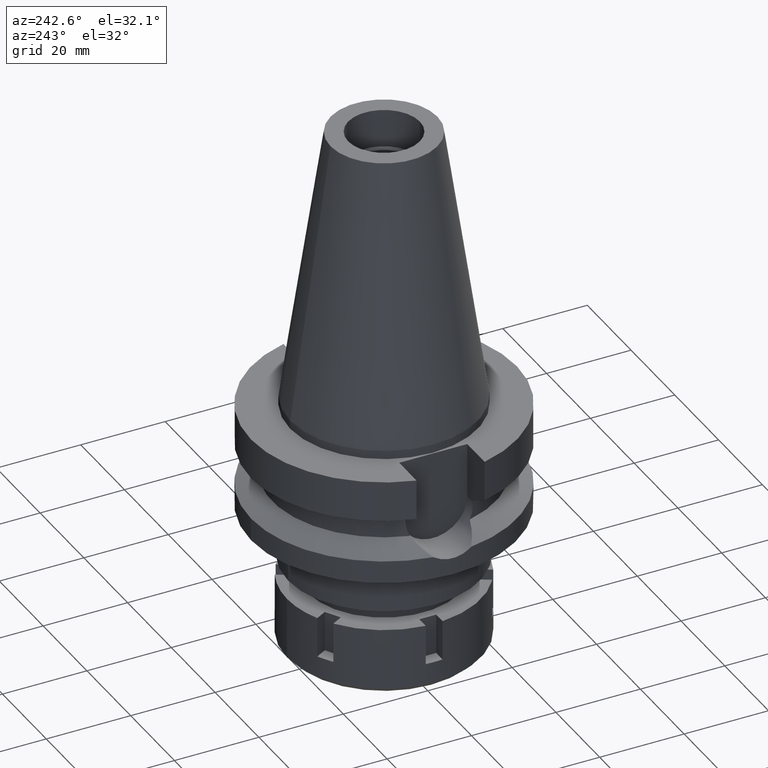
[diagram: clean part render]
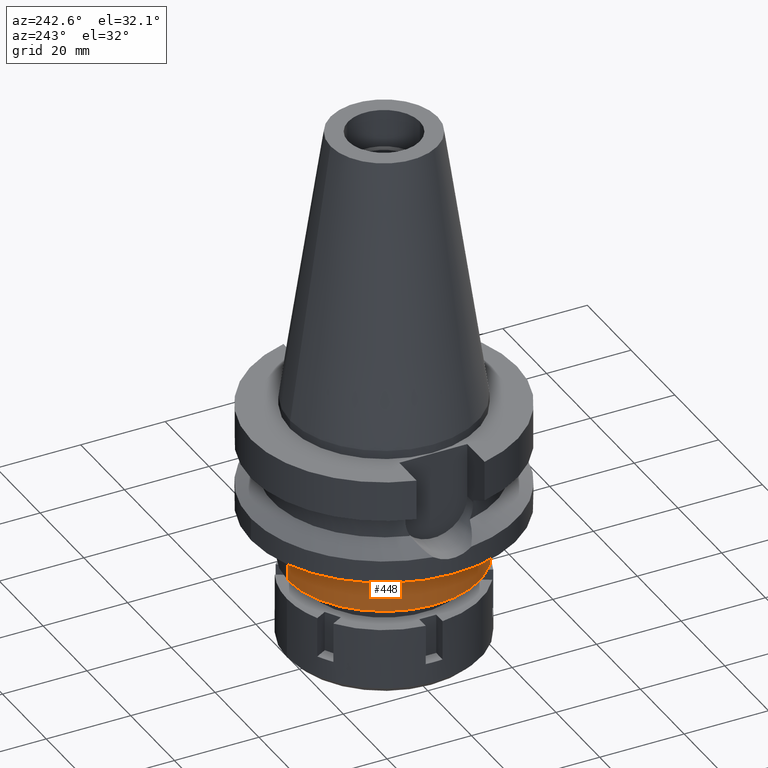
[diagram: same view with one face highlighted and labeled with its STEP entity id]
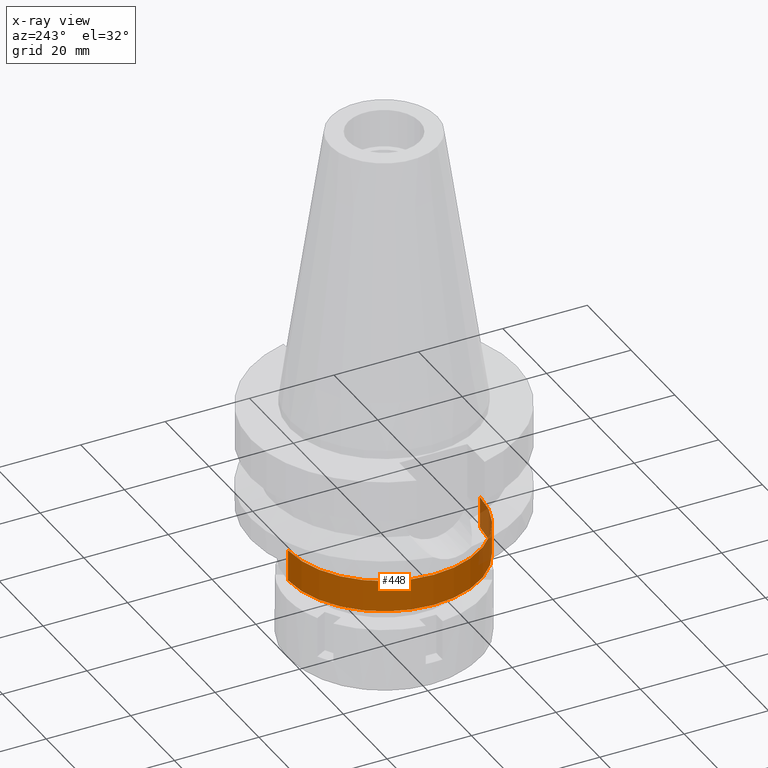
[diagram: x-ray of the same camera — body ghosted, the highlighted face saturated]
A machine part, auxiliary view. The second image highlights one B-rep face of the part: STEP entity #448.
The next image is the same camera in x-ray: the body ghosted, the highlighted face saturated — about 9% of this face is hidden behind the body in this view.
In plain terms, the highlighted cylindrical surface (partial cylindrical patch) has radius 22.75 mm, axis along (0, 0, -1).
Its self-contained STEP definition (entity closure, byte-faithful):
#24 = CARTESIAN_POINT ( 'NONE',  ( 0.0000000000000000000, -22.75000000000000000, -32.00000000000000000 ) ) ;
#207 = VERTEX_POINT ( 'NONE', #3461 ) ;
#298 = VERTEX_POINT ( 'NONE', #1915 ) ;
#357 = AXIS2_PLACEMENT_3D ( 'NONE', #1177, #3073, #2285 ) ;
#448 = ADVANCED_FACE ( 'NONE', ( #1636 ), #3273, .T. ) ;
#526 = CIRCLE ( 'NONE', #1285, 22.75000000000000000 ) ;
#546 = DIRECTION ( 'NONE',  ( 0.0000000000000000000, 0.0000000000000000000, -1.000000000000000000 ) ) ;
#874 = EDGE_CURVE ( 'NONE', #1714, #298, #2194, .T. ) ;
#894 = EDGE_CURVE ( 'NONE', #207, #298, #526, .T. ) ;
#1072 = EDGE_CURVE ( 'NONE', #1714, #2731, #1956, .T. ) ;
#1155 = CARTESIAN_POINT ( 'NONE',  ( 0.0000000000000000000, 2.097452572899999775E-14, -39.50000000000000000 ) ) ;
#1177 = CARTESIAN_POINT ( 'NONE',  ( 0.0000000000000000000, 0.0000000000000000000, -32.00000000000000000 ) ) ;
#1211 = ORIENTED_EDGE ( 'NONE', *, *, #894, .T. ) ;
#1257 = CARTESIAN_POINT ( 'NONE',  ( 0.0000000000000000000, -22.75000000000000000, -32.00000000000000000 ) ) ;
#1285 = AXIS2_PLACEMENT_3D ( 'NONE', #1155, #2482, #2973 ) ;
#1636 = FACE_OUTER_BOUND ( 'NONE', #2552, .T. ) ;
#1706 = DIRECTION ( 'NONE',  ( 0.0000000000000000000, -1.000000000000000000, 0.0000000000000000000 ) ) ;
#1714 = VERTEX_POINT ( 'NONE', #1257 ) ;
#1736 = CARTESIAN_POINT ( 'NONE',  ( 0.0000000000000000000, 22.75000000000000000, -32.00000000000000000 ) ) ;
#1843 = AXIS2_PLACEMENT_3D ( 'NONE', #2486, #546, #1706 ) ;
#1915 = CARTESIAN_POINT ( 'NONE',  ( 0.0000000000000000000, -22.75000000000000000, -39.50000000000000000 ) ) ;
#1956 = CIRCLE ( 'NONE', #357, 22.75000000000000000 ) ;
#2064 = LINE ( 'NONE', #2628, #2130 ) ;
#2130 = VECTOR ( 'NONE', #3442, 1000.000000000000000 ) ;
#2194 = LINE ( 'NONE', #24, #3438 ) ;
#2285 = DIRECTION ( 'NONE',  ( 0.0000000000000000000, -1.000000000000000000, 0.0000000000000000000 ) ) ;
#2482 = DIRECTION ( 'NONE',  ( 0.0000000000000000000, 0.0000000000000000000, 1.000000000000000000 ) ) ;
#2486 = CARTESIAN_POINT ( 'NONE',  ( 0.0000000000000000000, 2.097452572899999775E-14, 71.26999999999999602 ) ) ;
#2552 = EDGE_LOOP ( 'NONE', ( #1211, #3534, #3410, #3252 ) ) ;
#2628 = CARTESIAN_POINT ( 'NONE',  ( 0.0000000000000000000, 22.75000000000000000, -32.00000000000000000 ) ) ;
#2731 = VERTEX_POINT ( 'NONE', #1736 ) ;
#2919 = EDGE_CURVE ( 'NONE', #2731, #207, #2064, .T. ) ;
#2973 = DIRECTION ( 'NONE',  ( 0.0000000000000000000, 1.000000000000000000, 0.0000000000000000000 ) ) ;
#3073 = DIRECTION ( 'NONE',  ( 0.0000000000000000000, 0.0000000000000000000, -1.000000000000000000 ) ) ;
#3252 = ORIENTED_EDGE ( 'NONE', *, *, #2919, .T. ) ;
#3273 = CYLINDRICAL_SURFACE ( 'NONE', #1843, 22.75000000000000000 ) ;
#3302 = DIRECTION ( 'NONE',  ( 0.0000000000000000000, 0.0000000000000000000, -1.000000000000000000 ) ) ;
#3410 = ORIENTED_EDGE ( 'NONE', *, *, #1072, .T. ) ;
#3438 = VECTOR ( 'NONE', #3302, 1000.000000000000000 ) ;
#3442 = DIRECTION ( 'NONE',  ( 0.0000000000000000000, 0.0000000000000000000, -1.000000000000000000 ) ) ;
#3461 = CARTESIAN_POINT ( 'NONE',  ( 0.0000000000000000000, 22.75000000000000000, -39.50000000000000000 ) ) ;
#3534 = ORIENTED_EDGE ( 'NONE', *, *, #874, .F. ) ;